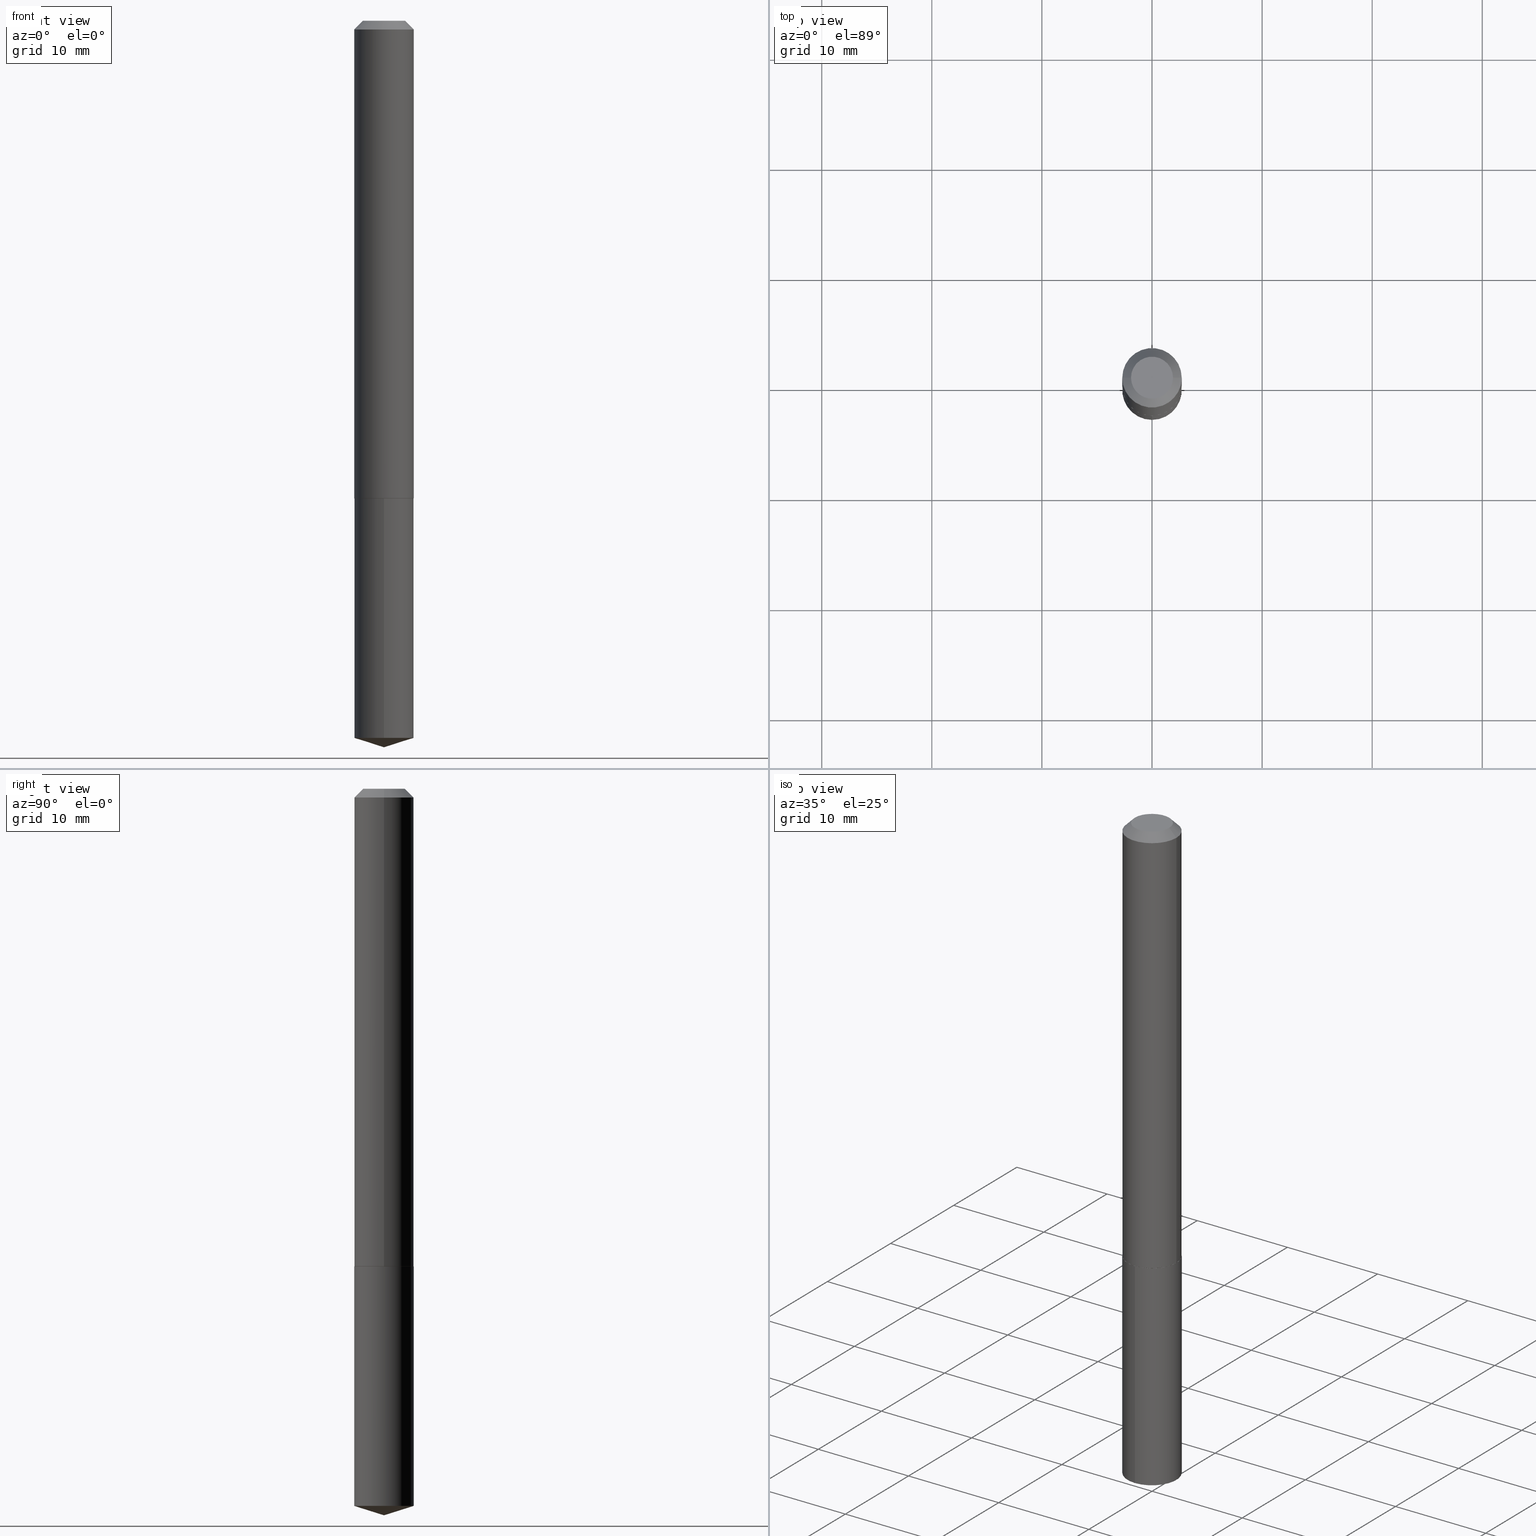
[diagram: canonical four-view strip — front | top / right | iso, engineering-drawing reading convention]
A machine part, canonical four-view strip (front | top / right | iso — engineering-drawing reading convention). The complete STEP part file that produces these views, byte-faithful:
ISO-10303-21;
HEADER;
FILE_DESCRIPTION (( 'STEP AP203' ),
    '1' );
FILE_NAME ('68702.STEP',
    '2024-04-23T13:43:14',
    ( '' ),
    ( '' ),
    'SwSTEP 2.0',
    'SolidWorks 2023',
    '' );
FILE_SCHEMA (( 'CONFIG_CONTROL_DESIGN' ));
ENDSEC;

DATA;
#1 = CARTESIAN_POINT ( 'NONE',  ( -0.1058000000000002688, -5.211141573939099053E-15, -1.708599999999999675 ) ) ;
#2 = PLANE ( 'NONE',  #193 ) ;
#3 = AXIS2_PLACEMENT_3D ( 'NONE', #270, #33, #188 ) ;
#4 = LINE ( 'NONE', #47, #42 ) ;
#5 = AXIS2_PLACEMENT_3D ( 'NONE', #387, #30, #23 ) ;
#6 = EDGE_LOOP ( 'NONE', ( #142, #95, #98, #90 ) ) ;
#7 = ORIENTED_EDGE ( 'NONE', *, *, #293, .T. ) ;
#8 = DIRECTION ( 'NONE',  ( -1.000000000000000000, 6.982962677686265922E-15, -4.876176775795935793E-29 ) ) ;
#9 = CIRCLE ( 'NONE', #3, 0.1063000000000000056 ) ;
#10 = APPROVAL_PERSON_ORGANIZATION ( #76, #220, #228 ) ;
#11 = CARTESIAN_POINT ( 'NONE',  ( -8.992007388409862087E-28, 1.283932429603322611E-13, 36.77167874015748339 ) ) ;
#12 = FACE_OUTER_BOUND ( 'NONE', #252, .T. ) ;
#13 = ORIENTED_EDGE ( 'NONE', *, *, #29, .T. ) ;
#14 =( NAMED_UNIT ( * ) SI_UNIT ( $, .STERADIAN. ) SOLID_ANGLE_UNIT ( ) );
#15 = EDGE_CURVE ( 'NONE', #200, #246, #79, .T. ) ;
#16 = FACE_OUTER_BOUND ( 'NONE', #301, .T. ) ;
#17 = CARTESIAN_POINT ( 'NONE',  ( 0.1063000000000002415, -6.706088207516028077E-15, -1.708099999999999952 ) ) ;
#18 = AXIS2_PLACEMENT_3D ( 'NONE', #386, #186, #126 ) ;
#19 = DIRECTION ( 'NONE',  ( -2.445366950737463052E-29, 3.491627201641465727E-15, 1.000000000000000000 ) ) ;
#20 = EDGE_CURVE ( 'NONE', #308, #287, #9, .T. ) ;
#21 = COORDINATED_UNIVERSAL_TIME_OFFSET ( 5, 0, .BEHIND. ) ;
#22 = EDGE_LOOP ( 'NONE', ( #333, #57, #227, #325 ) ) ;
#23 = DIRECTION ( 'NONE',  ( -6.982962677686265133E-15, -1.000000000000000000, 3.500519750498771880E-15 ) ) ;
#24 = EDGE_LOOP ( 'NONE', ( #147, #378, #297, #179 ) ) ;
#25 = AXIS2_PLACEMENT_3D ( 'NONE', #11, #143, #77 ) ;
#26 = VECTOR ( 'NONE', #375, 39.37007874015748143 ) ;
#27 = FACE_OUTER_BOUND ( 'NONE', #24, .T. ) ;
#28 = ORIENTED_EDGE ( 'NONE', *, *, #288, .T. ) ;
#29 = EDGE_CURVE ( 'NONE', #367, #287, #300, .T. ) ;
#30 = DIRECTION ( 'NONE',  ( -2.445366950737463332E-29, 3.491627201641465727E-15, 1.000000000000000000 ) ) ;
#31 = CC_DESIGN_PERSON_AND_ORGANIZATION_ASSIGNMENT ( #120, #213, ( #269 ) ) ;
#32 = DIRECTION ( 'NONE',  ( 1.000000000000000000, -6.982962677686266711E-15, 4.876176775795935793E-29 ) ) ;
#33 = DIRECTION ( 'NONE',  ( -2.445366950737463332E-29, 3.491627201641465727E-15, 1.000000000000000000 ) ) ;
#34 = AXIS2_PLACEMENT_3D ( 'NONE', #153, #302, #182 ) ;
#35 = EDGE_CURVE ( 'NONE', #212, #278, #185, .T. ) ;
#36 = CC_DESIGN_PERSON_AND_ORGANIZATION_ASSIGNMENT ( #82, #129, ( #247 ) ) ;
#37 = FACE_OUTER_BOUND ( 'NONE', #218, .T. ) ;
#38 = PLANE ( 'NONE',  #284 ) ;
#39 = FACE_OUTER_BOUND ( 'NONE', #127, .T. ) ;
#40 = DIRECTION ( 'NONE',  ( 6.982962677686265922E-15, 1.000000000000000000, -3.491627201641465727E-15 ) ) ;
#41 = DIMENSIONAL_EXPONENTS ( 1.000000000000000000, 0.000000000000000000, 0.000000000000000000, 0.000000000000000000, 0.000000000000000000, 0.000000000000000000, 0.000000000000000000 ) ;
#42 = VECTOR ( 'NONE', #177, 39.37007874015748854 ) ;
#43 =( GEOMETRIC_REPRESENTATION_CONTEXT ( 3 ) GLOBAL_UNCERTAINTY_ASSIGNED_CONTEXT ( ( #312 ) ) GLOBAL_UNIT_ASSIGNED_CONTEXT ( ( #304, #99, #14 ) ) REPRESENTATION_CONTEXT ( 'NONE', 'WORKASPACE' ) );
#44 = CARTESIAN_POINT ( 'NONE',  ( 4.177105267844832123E-29, -5.963799274877977150E-15, -1.708099999999999952 ) ) ;
#45 = CARTESIAN_POINT ( 'NONE',  ( 4.178328002247923804E-29, -5.965545015547398653E-15, -1.708599999999999897 ) ) ;
#46 = PRODUCT_DEFINITION ( 'UNKNOWN', '', #269, #376 ) ;
#47 = CARTESIAN_POINT ( 'NONE',  ( 6.354392597311181890E-29, -9.072145678390764475E-15, -2.598399999999999821 ) ) ;
#48 = DIRECTION ( 'NONE',  ( 2.445468806185136597E-29, -3.491481338843145583E-15, -1.000000000000000000 ) ) ;
#49 = DIRECTION ( 'NONE',  ( -2.445468806185136597E-29, 3.491481338843145583E-15, 1.000000000000000000 ) ) ;
#50 = AXIS2_PLACEMENT_3D ( 'NONE', #92, #194, #165 ) ;
#51 = ADVANCED_FACE ( 'NONE', ( #273 ), #2, .F. ) ;
#52 = ORGANIZATION ( 'UNSPECIFIED', 'UNSPECIFIED', '' ) ;
#53 = ORIENTED_EDGE ( 'NONE', *, *, #180, .T. ) ;
#54 = CLOSED_SHELL ( 'NONE', ( #68, #151, #203, #365, #327 ) ) ;
#55 = AXIS2_PLACEMENT_3D ( 'NONE', #154, #265, #383 ) ;
#56 = ORIENTED_EDGE ( 'NONE', *, *, #15, .F. ) ;
#57 = ORIENTED_EDGE ( 'NONE', *, *, #150, .T. ) ;
#58 = EDGE_CURVE ( 'NONE', #124, #222, #139, .T. ) ;
#59 = ORIENTED_EDGE ( 'NONE', *, *, #262, .F. ) ;
#60 = SECURITY_CLASSIFICATION_LEVEL ( 'unclassified' ) ;
#61 = AXIS2_PLACEMENT_3D ( 'NONE', #105, #71, #307 ) ;
#62 = AXIS2_PLACEMENT_3D ( 'NONE', #162, #63, #189 ) ;
#63 = DIRECTION ( 'NONE',  ( 2.445468806185136597E-29, -3.491481338843145583E-15, -1.000000000000000000 ) ) ;
#64 = CARTESIAN_POINT ( 'NONE',  ( 7.553069281130281498E-16, 0.1062999999999940520, -1.708600000000000119 ) ) ;
#65 = DIRECTION ( 'NONE',  ( 1.000000000000000000, -6.982962677686265922E-15, 4.876182450887181548E-29 ) ) ;
#66 = COORDINATED_UNIVERSAL_TIME_OFFSET ( 5, 0, .BEHIND. ) ;
#67 = ORIENTED_EDGE ( 'NONE', *, *, #86, .F. ) ;
#68 = ADVANCED_FACE ( 'NONE', ( #303 ), #229, .T. ) ;
#69 = CARTESIAN_POINT ( 'NONE',  ( 0.000000000000000000, 0.000000000000000000, 0.000000000000000000 ) ) ;
#70 = ADVANCED_FACE ( 'NONE', ( #37 ), #317, .T. ) ;
#71 = DIRECTION ( 'NONE',  ( -2.445366950737463332E-29, 3.491627201641465727E-15, 1.000000000000000000 ) ) ;
#72 = CARTESIAN_POINT ( 'NONE',  ( 4.178328002247923804E-29, -5.965545015547398653E-15, -1.708599999999999897 ) ) ;
#73 = ORIENTED_EDGE ( 'NONE', *, *, #288, .F. ) ;
#74 = CARTESIAN_POINT ( 'NONE',  ( 4.177105267844832123E-29, -5.963799274877977150E-15, -1.708099999999999952 ) ) ;
#75 = CARTESIAN_POINT ( 'NONE',  ( -7.422889326380084277E-16, -0.1063000000000059592, -1.708599999999999675 ) ) ;
#76 = PERSON_AND_ORGANIZATION ( #223, #52 ) ;
#77 = DIRECTION ( 'NONE',  ( -6.982962677686265133E-15, -1.000000000000000000, 3.500519750498771880E-15 ) ) ;
#78 = CYLINDRICAL_SURFACE ( 'NONE', #131, 0.1063000000000000056 ) ;
#79 = CIRCLE ( 'NONE', #50, 0.1058000000000002688 ) ;
#80 = CIRCLE ( 'NONE', #178, 0.1063000000000002415 ) ;
#81 = ORIENTED_EDGE ( 'NONE', *, *, #381, .T. ) ;
#82 = PERSON_AND_ORGANIZATION ( #223, #52 ) ;
#83 = EDGE_LOOP ( 'NONE', ( #242, #81, #204 ) ) ;
#84 = CC_DESIGN_APPROVAL ( #220, ( #46 ) ) ;
#85 = APPROVAL_STATUS ( 'not_yet_approved' ) ;
#86 = EDGE_CURVE ( 'NONE', #200, #280, #113, .T. ) ;
#87 = LOCAL_TIME ( 9, 43, 14.00000000000000000, #173 ) ;
#88 = APPROVAL_STATUS ( 'not_yet_approved' ) ;
#89 = CARTESIAN_POINT ( 'NONE',  ( 6.354041484796224725E-29, -9.072644120745184724E-15, -2.598399999999999821 ) ) ;
#90 = ORIENTED_EDGE ( 'NONE', *, *, #230, .F. ) ;
#91 = CALENDAR_DATE ( 2024, 23, 4 ) ;
#92 = CARTESIAN_POINT ( 'NONE',  ( 4.178328002247923243E-29, -5.965545015547397076E-15, -1.708599999999999675 ) ) ;
#93 = PERSON_AND_ORGANIZATION ( #223, #52 ) ;
#94 = CYLINDRICAL_SURFACE ( 'NONE', #324, 0.1063000000000001166 ) ;
#95 = ORIENTED_EDGE ( 'NONE', *, *, #170, .T. ) ;
#96 = AXIS2_PLACEMENT_3D ( 'NONE', #44, #138, #289 ) ;
#97 = ORIENTED_EDGE ( 'NONE', *, *, #230, .T. ) ;
#98 = ORIENTED_EDGE ( 'NONE', *, *, #332, .T. ) ;
#99 =( NAMED_UNIT ( * ) PLANE_ANGLE_UNIT ( ) SI_UNIT ( $, .RADIAN. ) );
#100 = AXIS2_PLACEMENT_3D ( 'NONE', #190, #275, #130 ) ;
#101 = CC_DESIGN_APPROVAL ( #363, ( #269 ) ) ;
#102 = ORIENTED_EDGE ( 'NONE', *, *, #20, .T. ) ;
#103 = DIRECTION ( 'NONE',  ( -2.445468806185136597E-29, 3.491481338843145583E-15, 1.000000000000000000 ) ) ;
#104 = CARTESIAN_POINT ( 'NONE',  ( 7.553069281130496462E-16, 0.1062999999999910683, -2.564883738742163910 ) ) ;
#105 = CARTESIAN_POINT ( 'NONE',  ( 4.178328002247923804E-29, -5.965545015547398653E-15, -1.708599999999999897 ) ) ;
#106 = DATE_AND_TIME ( #233, #87 ) ;
#107 = CC_DESIGN_PERSON_AND_ORGANIZATION_ASSIGNMENT ( #335, #328, ( #46 ) ) ;
#108 = ORIENTED_EDGE ( 'NONE', *, *, #374, .T. ) ;
#109 = CARTESIAN_POINT ( 'NONE',  ( 6.354041484796224725E-29, -9.072644120745184724E-15, -2.598399999999999821 ) ) ;
#110 = CARTESIAN_POINT ( 'NONE',  ( 7.642090019328599159E-31, -1.091087918388489774E-16, -0.03125000000000019429 ) ) ;
#111 = CIRCLE ( 'NONE', #379, 0.1063000000000000056 ) ;
#112 = VECTOR ( 'NONE', #271, 39.37007874015748143 ) ;
#113 = LINE ( 'NONE', #171, #319 ) ;
#114 = CARTESIAN_POINT ( 'NONE',  ( 7.642090019328599159E-31, -1.091087918388489774E-16, -0.03125000000000019429 ) ) ;
#115 = LINE ( 'NONE', #234, #207 ) ;
#116 = CC_DESIGN_DATE_AND_TIME_ASSIGNMENT ( #384, #184, ( #46 ) ) ;
#117 = CONICAL_SURFACE ( 'NONE', #5, 124.8659371009126602, 1.265363707695886131 ) ;
#118 = ORIENTED_EDGE ( 'NONE', *, *, #58, .F. ) ;
#119 = CC_DESIGN_PERSON_AND_ORGANIZATION_ASSIGNMENT ( #235, #368, ( #382 ) ) ;
#120 = PERSON_AND_ORGANIZATION ( #223, #52 ) ;
#121 = CLOSED_SHELL ( 'NONE', ( #318, #272, #70, #51, #305, #192, #259, #348 ) ) ;
#122 = AXIS2_PLACEMENT_3D ( 'NONE', #299, #241, #156 ) ;
#123 = CARTESIAN_POINT ( 'NONE',  ( -7.422889326379876215E-16, -0.1063000000000090123, -2.564883738742163022 ) ) ;
#124 = VERTEX_POINT ( 'NONE', #198 ) ;
#125 = APPROVAL ( #85, 'UNSPECIFIED' ) ;
#126 = DIRECTION ( 'NONE',  ( -6.982962677686265922E-15, -1.000000000000000000, 2.569941668545873170E-15 ) ) ;
#127 = EDGE_LOOP ( 'NONE', ( #108, #353, #315, #196 ) ) ;
#128 = DIRECTION ( 'NONE',  ( -0.7071067811865453523, 2.468850131082234184E-15, -0.7071067811865496822 ) ) ;
#129 = PERSON_AND_ORGANIZATION_ROLE ( 'classification_officer' ) ;
#130 = DIRECTION ( 'NONE',  ( 1.000000000000000000, -6.982962677686267499E-15, 0.000000000000000000 ) ) ;
#131 = AXIS2_PLACEMENT_3D ( 'NONE', #45, #255, #372 ) ;
#132 = CARTESIAN_POINT ( 'NONE',  ( -0.1063000000000000056, -2.281147105245424221E-15, -0.03125000000000019429 ) ) ;
#133 = APPROVAL_STATUS ( 'not_yet_approved' ) ;
#134 = ORIENTED_EDGE ( 'NONE', *, *, #20, .F. ) ;
#135 = APPROVAL_DATE_TIME ( #106, #125 ) ;
#136 = ORIENTED_EDGE ( 'NONE', *, *, #346, .F. ) ;
#137 = FACE_OUTER_BOUND ( 'NONE', #183, .T. ) ;
#138 = DIRECTION ( 'NONE',  ( -2.445468806185136597E-29, 3.491481338843145583E-15, 1.000000000000000000 ) ) ;
#139 = CIRCLE ( 'NONE', #268, 0.07505000000000000560 ) ;
#140 = VECTOR ( 'NONE', #211, 39.37007874015748854 ) ;
#141 = MANIFOLD_SOLID_BREP ( 'Body-Move/Copy2[1]', #54 ) ;
#142 = ORIENTED_EDGE ( 'NONE', *, *, #29, .F. ) ;
#143 = DIRECTION ( 'NONE',  ( -2.445366950737463332E-29, 3.491627201641465727E-15, 1.000000000000000000 ) ) ;
#144 = CARTESIAN_POINT ( 'NONE',  ( 6.272255957421923181E-29, -8.955368610062791421E-15, -2.564883738742163466 ) ) ;
#145 = DIRECTION ( 'NONE',  ( 1.000000000000000000, -6.982962677686262766E-15, 0.000000000000000000 ) ) ;
#146 = FACE_OUTER_BOUND ( 'NONE', #373, .T. ) ;
#147 = ORIENTED_EDGE ( 'NONE', *, *, #311, .F. ) ;
#148 = CARTESIAN_POINT ( 'NONE',  ( -7.422889326380084277E-16, -0.1063000000000059592, -1.708599999999999675 ) ) ;
#149 = APPLICATION_PROTOCOL_DEFINITION ( 'international standard', 'config_control_design', 1994, #219 ) ;
#150 = EDGE_CURVE ( 'NONE', #316, #280, #290, .T. ) ;
#151 = ADVANCED_FACE ( 'NONE', ( #137 ), #174, .T. ) ;
#152 = LOCAL_TIME ( 9, 43, 14.00000000000000000, #66 ) ;
#153 = CARTESIAN_POINT ( 'NONE',  ( 4.178328002247923243E-29, -5.965545015547397076E-15, -1.708599999999999675 ) ) ;
#154 = CARTESIAN_POINT ( 'NONE',  ( 0.000000000000000000, 0.000000000000000000, 0.000000000000000000 ) ) ;
#155 = VERTEX_POINT ( 'NONE', #109 ) ;
#156 = DIRECTION ( 'NONE',  ( 1.000000000000000000, -6.982962677686266711E-15, 4.876176775795935793E-29 ) ) ;
#157 = AXIS2_PLACEMENT_3D ( 'NONE', #74, #339, #285 ) ;
#158 = CARTESIAN_POINT ( 'NONE',  ( -0.07505000000000001947, 5.786257448797778683E-16, 2.388061258298797245E-19 ) ) ;
#159 = ORIENTED_EDGE ( 'NONE', *, *, #346, .T. ) ;
#160 = DIRECTION ( 'NONE',  ( -2.445468806185136597E-29, 3.491481338843145583E-15, 1.000000000000000000 ) ) ;
#161 = PRODUCT_DEFINITION_SHAPE ( 'NONE', 'NONE',  #46 ) ;
#162 = CARTESIAN_POINT ( 'NONE',  ( 7.642090019328599159E-31, -1.091087918388489774E-16, -0.03125000000000019429 ) ) ;
#163 = DIRECTION ( 'NONE',  ( -2.445366950737463052E-29, 3.491627201641465727E-15, 1.000000000000000000 ) ) ;
#164 = LINE ( 'NONE', #274, #310 ) ;
#165 = DIRECTION ( 'NONE',  ( 1.000000000000000000, -6.982962677686265922E-15, 0.000000000000000000 ) ) ;
#166 = CARTESIAN_POINT ( 'NONE',  ( 0.1063000000000000056, -8.513977244768991407E-16, -0.03125000000000019429 ) ) ;
#167 = DATE_AND_TIME ( #361, #320 ) ;
#168 = APPROVAL_PERSON_ORGANIZATION ( #295, #125, #209 ) ;
#169 = CARTESIAN_POINT ( 'NONE',  ( 6.272255957421923181E-29, -8.955368610062791421E-15, -2.564883738742163466 ) ) ;
#170 = EDGE_CURVE ( 'NONE', #367, #245, #111, .T. ) ;
#171 = CARTESIAN_POINT ( 'NONE',  ( 0.1063000000000002415, -6.706088207516028077E-15, -1.708099999999999952 ) ) ;
#172 = DIRECTION ( 'NONE',  ( 2.445366950737463052E-29, -3.491627201641465727E-15, -1.000000000000000000 ) ) ;
#173 = COORDINATED_UNIVERSAL_TIME_OFFSET ( 5, 0, .BEHIND. ) ;
#174 = CONICAL_SURFACE ( 'NONE', #25, 124.8659371009126602, 1.265363707695886131 ) ;
#175 = AXIS2_PLACEMENT_3D ( 'NONE', #144, #336, #195 ) ;
#176 = DIRECTION ( 'NONE',  ( 1.000000000000000000, -6.982962677686267499E-15, 0.000000000000000000 ) ) ;
#177 = DIRECTION ( 'NONE',  ( 6.776566513254244727E-15, 0.9537169507482271547, 0.3007057995042724530 ) ) ;
#178 = AXIS2_PLACEMENT_3D ( 'NONE', #355, #160, #294 ) ;
#179 = ORIENTED_EDGE ( 'NONE', *, *, #35, .T. ) ;
#180 = EDGE_CURVE ( 'NONE', #246, #200, #254, .T. ) ;
#181 =( LENGTH_UNIT ( ) NAMED_UNIT ( * ) SI_UNIT ( $, .METRE. ) );
#182 = DIRECTION ( 'NONE',  ( 1.000000000000000000, -6.982962677686265922E-15, 0.000000000000000000 ) ) ;
#183 = EDGE_LOOP ( 'NONE', ( #313, #362, #136 ) ) ;
#184 = DATE_TIME_ROLE ( 'creation_date' ) ;
#185 = CIRCLE ( 'NONE', #100, 0.1063000000000000056 ) ;
#186 = DIRECTION ( 'NONE',  ( -2.445366950737463332E-29, 3.491627201641465727E-15, 1.000000000000000000 ) ) ;
#187 = CIRCLE ( 'NONE', #175, 0.1063000000000000056 ) ;
#188 = DIRECTION ( 'NONE',  ( -6.982962677686265922E-15, -1.000000000000000000, 2.569941668545873170E-15 ) ) ;
#189 = DIRECTION ( 'NONE',  ( -1.000000000000000000, 6.982962677686267499E-15, 0.000000000000000000 ) ) ;
#190 = CARTESIAN_POINT ( 'NONE',  ( 7.642090019328599159E-31, -1.091087918388489774E-16, -0.03125000000000019429 ) ) ;
#191 = CARTESIAN_POINT ( 'NONE',  ( -5.839929314523221596E-48, 8.337871319499147471E-34, 2.388061258337352918E-19 ) ) ;
#192 = ADVANCED_FACE ( 'NONE', ( #296 ), #248, .T. ) ;
#193 = AXIS2_PLACEMENT_3D ( 'NONE', #389, #250, #221 ) ;
#194 = DIRECTION ( 'NONE',  ( -2.445468806185136597E-29, 3.491481338843145583E-15, 1.000000000000000000 ) ) ;
#195 = DIRECTION ( 'NONE',  ( -6.982962677686265922E-15, -1.000000000000000000, 5.139883337091746339E-15 ) ) ;
#196 = ORIENTED_EDGE ( 'NONE', *, *, #390, .F. ) ;
#197 = APPLICATION_PROTOCOL_DEFINITION ( 'international standard', 'config_control_design', 1994, #208 ) ;
#198 = CARTESIAN_POINT ( 'NONE',  ( 0.07505000000000001947, -6.766300518673582083E-16, 2.388061258379330487E-19 ) ) ;
#199 = APPROVAL_PERSON_ORGANIZATION ( #243, #363, #210 ) ;
#200 = VERTEX_POINT ( 'NONE', #277 ) ;
#201 = COORDINATED_UNIVERSAL_TIME_OFFSET ( 5, 0, .BEHIND. ) ;
#202 = DIRECTION ( 'NONE',  ( -2.445468806185136597E-29, 3.491481338843145583E-15, 1.000000000000000000 ) ) ;
#203 = ADVANCED_FACE ( 'NONE', ( #360 ), #117, .T. ) ;
#204 = ORIENTED_EDGE ( 'NONE', *, *, #170, .F. ) ;
#205 = CARTESIAN_POINT ( 'NONE',  ( -5.839929314523221596E-48, 8.337871319499147471E-34, 2.388061258337352918E-19 ) ) ;
#206 = AXIS2_PLACEMENT_3D ( 'NONE', #334, #103, #145 ) ;
#207 = VECTOR ( 'NONE', #342, 39.37007874015748143 ) ;
#208 = APPLICATION_CONTEXT ( 'configuration controlled 3d designs of mechanical parts and assemblies' ) ;
#209 = APPROVAL_ROLE ( '' ) ;
#210 = APPROVAL_ROLE ( '' ) ;
#211 = DIRECTION ( 'NONE',  ( -6.659769872151619467E-15, -0.9537169507482249342, 0.3007057995042790588 ) ) ;
#212 = VERTEX_POINT ( 'NONE', #132 ) ;
#213 = PERSON_AND_ORGANIZATION_ROLE ( 'creator' ) ;
#214 = ORIENTED_EDGE ( 'NONE', *, *, #374, .F. ) ;
#215 = PERSON_AND_ORGANIZATION_ROLE ( 'design_supplier' ) ;
#216 = CIRCLE ( 'NONE', #18, 0.1063000000000000056 ) ;
#217 = CONICAL_SURFACE ( 'NONE', #62, 0.1063000000000000056, 0.7853981633974452814 ) ;
#218 = EDGE_LOOP ( 'NONE', ( #344, #28, #214, #67 ) ) ;
#219 = APPLICATION_CONTEXT ( 'configuration controlled 3d designs of mechanical parts and assemblies' ) ;
#220 = APPROVAL ( #133, 'UNSPECIFIED' ) ;
#221 = DIRECTION ( 'NONE',  ( 1.000000000000000000, -6.982962677686265922E-15, 4.876176775795935793E-29 ) ) ;
#222 = VERTEX_POINT ( 'NONE', #158 ) ;
#223 = PERSON ( 'UNSPECIFIED', 'UNSPECIFIED', 'UNSPECIFIED', ('UNSPECIFIED'), ('UNSPECIFIED'), ('UNSPECIFIED') ) ;
#224 = DIRECTION ( 'NONE',  ( -2.445366950737463332E-29, 3.491627201641465727E-15, 1.000000000000000000 ) ) ;
#225 = DIRECTION ( 'NONE',  ( -6.982962677686265922E-15, -1.000000000000000000, 5.139883337091746339E-15 ) ) ;
#226 = PRODUCT_RELATED_PRODUCT_CATEGORY ( 'detail', '', ( #382 ) ) ;
#227 = ORIENTED_EDGE ( 'NONE', *, *, #390, .T. ) ;
#228 = APPROVAL_ROLE ( '' ) ;
#229 = CYLINDRICAL_SURFACE ( 'NONE', #61, 0.1063000000000000056 ) ;
#230 = EDGE_CURVE ( 'NONE', #287, #308, #216, .T. ) ;
#231 = FACE_OUTER_BOUND ( 'NONE', #6, .T. ) ;
#232 = CONICAL_SURFACE ( 'NONE', #96, 0.1063000000000002415, 0.7853981633977896726 ) ;
#233 = CALENDAR_DATE ( 2024, 23, 4 ) ;
#234 = CARTESIAN_POINT ( 'NONE',  ( -0.1063000000000002415, -5.208492346764989429E-15, -1.708099999999999952 ) ) ;
#235 = PERSON_AND_ORGANIZATION ( #223, #52 ) ;
#236 = CARTESIAN_POINT ( 'NONE',  ( 7.553069281130493504E-16, 0.1062999999999940520, -1.708600000000000119 ) ) ;
#237 = ADVANCED_BREP_SHAPE_REPRESENTATION ( '68702', ( #141, #388, #55 ), #43 ) ;
#238 = AXIS2_PLACEMENT_3D ( 'NONE', #114, #48, #340 ) ;
#239 = VECTOR ( 'NONE', #163, 39.37007874015748143 ) ;
#240 = CC_DESIGN_SECURITY_CLASSIFICATION ( #247, ( #269 ) ) ;
#241 = DIRECTION ( 'NONE',  ( -2.445468806185136597E-29, 3.491481338843145583E-15, 1.000000000000000000 ) ) ;
#242 = ORIENTED_EDGE ( 'NONE', *, *, #279, .F. ) ;
#243 = PERSON_AND_ORGANIZATION ( #223, #52 ) ;
#244 = CARTESIAN_POINT ( 'NONE',  ( -0.1063000000000001166, 7.553069281129873262E-16, -5.228828000940970663E-30 ) ) ;
#245 = VERTEX_POINT ( 'NONE', #123 ) ;
#246 = VERTEX_POINT ( 'NONE', #1 ) ;
#247 = SECURITY_CLASSIFICATION ( '', '', #60 ) ;
#248 = CYLINDRICAL_SURFACE ( 'NONE', #122, 0.1063000000000001166 ) ;
#249 = COORDINATED_UNIVERSAL_TIME_OFFSET ( 5, 0, .BEHIND. ) ;
#250 = DIRECTION ( 'NONE',  ( -2.438088387897960049E-29, 3.491481338843145188E-15, 1.000000000000000000 ) ) ;
#251 = DATE_AND_TIME ( #309, #337 ) ;
#252 = EDGE_LOOP ( 'NONE', ( #118, #323, #253, #59 ) ) ;
#253 = ORIENTED_EDGE ( 'NONE', *, *, #371, .T. ) ;
#254 = CIRCLE ( 'NONE', #34, 0.1058000000000002688 ) ;
#255 = DIRECTION ( 'NONE',  ( -2.445366950737463332E-29, 3.491627201641465727E-15, 1.000000000000000000 ) ) ;
#256 = EDGE_CURVE ( 'NONE', #316, #212, #356, .T. ) ;
#257 = LINE ( 'NONE', #75, #260 ) ;
#258 = SHAPE_DEFINITION_REPRESENTATION ( #161, #237 ) ;
#259 = ADVANCED_FACE ( 'NONE', ( #27 ), #217, .T. ) ;
#260 = VECTOR ( 'NONE', #19, 39.37007874015748143 ) ;
#261 = FACE_OUTER_BOUND ( 'NONE', #329, .T. ) ;
#262 = EDGE_CURVE ( 'NONE', #222, #212, #164, .T. ) ;
#263 = EDGE_LOOP ( 'NONE', ( #159, #13, #134, #357 ) ) ;
#264 = VECTOR ( 'NONE', #352, 39.37007874015748143 ) ;
#265 = DIRECTION ( 'NONE',  ( 0.000000000000000000, 0.000000000000000000, 1.000000000000000000 ) ) ;
#266 = DATE_AND_TIME ( #91, #276 ) ;
#267 = ORIENTED_EDGE ( 'NONE', *, *, #180, .F. ) ;
#268 = AXIS2_PLACEMENT_3D ( 'NONE', #191, #326, #65 ) ;
#269 = PRODUCT_DEFINITION_FORMATION_WITH_SPECIFIED_SOURCE ( 'ANY', '', #382, .NOT_KNOWN. ) ;
#270 = CARTESIAN_POINT ( 'NONE',  ( 4.178328002247923804E-29, -5.965545015547398653E-15, -1.708599999999999897 ) ) ;
#271 = DIRECTION ( 'NONE',  ( -2.445468806185136877E-29, 3.491481338843145188E-15, 1.000000000000000000 ) ) ;
#272 = ADVANCED_FACE ( 'NONE', ( #39 ), #94, .T. ) ;
#273 = FACE_OUTER_BOUND ( 'NONE', #322, .T. ) ;
#274 = CARTESIAN_POINT ( 'NONE',  ( -0.1063000000000000056, 6.331801407992013339E-16, -0.03125000000000019429 ) ) ;
#275 = DIRECTION ( 'NONE',  ( -2.445468806185136597E-29, 3.491481338843145583E-15, 1.000000000000000000 ) ) ;
#276 = LOCAL_TIME ( 9, 43, 14.00000000000000000, #21 ) ;
#277 = CARTESIAN_POINT ( 'NONE',  ( 0.1058000000000002688, -6.704342466846605785E-15, -1.708599999999999675 ) ) ;
#278 = VERTEX_POINT ( 'NONE', #166 ) ;
#279 = EDGE_CURVE ( 'NONE', #155, #367, #4, .T. ) ;
#280 = VERTEX_POINT ( 'NONE', #17 ) ;
#281 = DIRECTION ( 'NONE',  ( 0.7071067811867889352, -2.468850131084785360E-15, 0.7071067811863060992 ) ) ;
#282 = CARTESIAN_POINT ( 'NONE',  ( -2.919964657261610798E-48, 4.168935659749573735E-34, 1.194030629168676459E-19 ) ) ;
#283 = APPROVAL_DATE_TIME ( #251, #220 ) ;
#284 = AXIS2_PLACEMENT_3D ( 'NONE', #282, #369, #8 ) ;
#285 = DIRECTION ( 'NONE',  ( 1.000000000000000000, -6.982962677686262766E-15, 0.000000000000000000 ) ) ;
#286 = CARTESIAN_POINT ( 'NONE',  ( -0.1063000000000002415, -5.208492346764989429E-15, -1.708099999999999952 ) ) ;
#287 = VERTEX_POINT ( 'NONE', #236 ) ;
#288 = EDGE_CURVE ( 'NONE', #246, #316, #115, .T. ) ;
#289 = DIRECTION ( 'NONE',  ( 1.000000000000000000, -6.982962677686262766E-15, 0.000000000000000000 ) ) ;
#290 = CIRCLE ( 'NONE', #157, 0.1063000000000002415 ) ;
#291 = CC_DESIGN_DATE_AND_TIME_ASSIGNMENT ( #167, #377, ( #247 ) ) ;
#292 = MECHANICAL_CONTEXT ( 'NONE', #219, 'mechanical' ) ;
#293 = EDGE_CURVE ( 'NONE', #222, #124, #330, .T. ) ;
#294 = DIRECTION ( 'NONE',  ( 1.000000000000000000, -6.982962677686262766E-15, 0.000000000000000000 ) ) ;
#295 = PERSON_AND_ORGANIZATION ( #223, #52 ) ;
#296 = FACE_OUTER_BOUND ( 'NONE', #22, .T. ) ;
#297 = ORIENTED_EDGE ( 'NONE', *, *, #262, .T. ) ;
#298 = APPROVAL_DATE_TIME ( #266, #363 ) ;
#299 = CARTESIAN_POINT ( 'NONE',  ( 0.000000000000000000, 0.000000000000000000, 0.000000000000000000 ) ) ;
#300 = LINE ( 'NONE', #64, #239 ) ;
#301 = EDGE_LOOP ( 'NONE', ( #73, #53, #364, #338 ) ) ;
#302 = DIRECTION ( 'NONE',  ( -2.445468806185136597E-29, 3.491481338843145583E-15, 1.000000000000000000 ) ) ;
#303 = FACE_OUTER_BOUND ( 'NONE', #263, .T. ) ;
#304 =( CONVERSION_BASED_UNIT ( 'INCH', #351 ) LENGTH_UNIT ( ) NAMED_UNIT ( #41 ) );
#305 = ADVANCED_FACE ( 'NONE', ( #16 ), #232, .T. ) ;
#306 = AXIS2_PLACEMENT_3D ( 'NONE', #110, #202, #176 ) ;
#307 = DIRECTION ( 'NONE',  ( -6.982962677686265922E-15, -1.000000000000000000, 2.569941668545873170E-15 ) ) ;
#308 = VERTEX_POINT ( 'NONE', #148 ) ;
#309 = CALENDAR_DATE ( 2024, 23, 4 ) ;
#310 = VECTOR ( 'NONE', #128, 39.37007874015748143 ) ;
#311 = EDGE_CURVE ( 'NONE', #124, #278, #370, .T. ) ;
#312 = UNCERTAINTY_MEASURE_WITH_UNIT (LENGTH_MEASURE( 1.000000000000000082E-05 ), #304, 'distance_accuracy_value', 'NONE');
#313 = ORIENTED_EDGE ( 'NONE', *, *, #381, .F. ) ;
#314 = PLANE ( 'NONE',  #366 ) ;
#315 = ORIENTED_EDGE ( 'NONE', *, *, #371, .F. ) ;
#316 = VERTEX_POINT ( 'NONE', #286 ) ;
#317 = CONICAL_SURFACE ( 'NONE', #206, 0.1063000000000002415, 0.7853981633977896726 ) ;
#318 = ADVANCED_FACE ( 'NONE', ( #12 ), #359, .T. ) ;
#319 = VECTOR ( 'NONE', #281, 39.37007874015748143 ) ;
#320 = LOCAL_TIME ( 9, 43, 14.00000000000000000, #249 ) ;
#321 = LINE ( 'NONE', #385, #112 ) ;
#322 = EDGE_LOOP ( 'NONE', ( #56, #267 ) ) ;
#323 = ORIENTED_EDGE ( 'NONE', *, *, #311, .T. ) ;
#324 = AXIS2_PLACEMENT_3D ( 'NONE', #69, #358, #32 ) ;
#325 = ORIENTED_EDGE ( 'NONE', *, *, #35, .F. ) ;
#326 = DIRECTION ( 'NONE',  ( -2.445468806185136597E-29, 3.491481338843145583E-15, 1.000000000000000000 ) ) ;
#327 = ADVANCED_FACE ( 'NONE', ( #146 ), #314, .F. ) ;
#328 = PERSON_AND_ORGANIZATION_ROLE ( 'creator' ) ;
#329 = EDGE_LOOP ( 'NONE', ( #7, #350 ) ) ;
#330 = CIRCLE ( 'NONE', #345, 0.07505000000000000560 ) ;
#331 = CARTESIAN_POINT ( 'NONE',  ( 0.1063000000000000056, -8.383797290019627421E-16, -0.03125000000000019429 ) ) ;
#332 = EDGE_CURVE ( 'NONE', #245, #308, #257, .T. ) ;
#333 = ORIENTED_EDGE ( 'NONE', *, *, #256, .F. ) ;
#334 = CARTESIAN_POINT ( 'NONE',  ( 4.177105267844832123E-29, -5.963799274877977150E-15, -1.708099999999999952 ) ) ;
#335 = PERSON_AND_ORGANIZATION ( #223, #52 ) ;
#336 = DIRECTION ( 'NONE',  ( -2.445366950737463332E-29, 3.491627201641465727E-15, 1.000000000000000000 ) ) ;
#337 = LOCAL_TIME ( 9, 43, 14.00000000000000000, #201 ) ;
#338 = ORIENTED_EDGE ( 'NONE', *, *, #150, .F. ) ;
#339 = DIRECTION ( 'NONE',  ( -2.445468806185136597E-29, 3.491481338843145583E-15, 1.000000000000000000 ) ) ;
#340 = DIRECTION ( 'NONE',  ( -1.000000000000000000, 6.982962677686267499E-15, 0.000000000000000000 ) ) ;
#341 = CC_DESIGN_PERSON_AND_ORGANIZATION_ASSIGNMENT ( #93, #215, ( #269 ) ) ;
#342 = DIRECTION ( 'NONE',  ( -0.7071067811867889352, 7.493145998871226640E-15, 0.7071067811863060992 ) ) ;
#343 = DIRECTION ( 'NONE',  ( 1.000000000000000000, -6.982962677686265922E-15, 4.876182450887181548E-29 ) ) ;
#344 = ORIENTED_EDGE ( 'NONE', *, *, #15, .T. ) ;
#345 = AXIS2_PLACEMENT_3D ( 'NONE', #205, #49, #343 ) ;
#346 = EDGE_CURVE ( 'NONE', #245, #367, #187, .T. ) ;
#347 = LINE ( 'NONE', #89, #140 ) ;
#348 = ADVANCED_FACE ( 'NONE', ( #261 ), #38, .F. ) ;
#349 = CC_DESIGN_APPROVAL ( #125, ( #247 ) ) ;
#350 = ORIENTED_EDGE ( 'NONE', *, *, #58, .T. ) ;
#351 = LENGTH_MEASURE_WITH_UNIT ( LENGTH_MEASURE( 0.02539999999999999897 ), #181 );
#352 = DIRECTION ( 'NONE',  ( -2.445468806185136877E-29, 3.491481338843145188E-15, 1.000000000000000000 ) ) ;
#353 = ORIENTED_EDGE ( 'NONE', *, *, #256, .T. ) ;
#354 = CALENDAR_DATE ( 2024, 23, 4 ) ;
#355 = CARTESIAN_POINT ( 'NONE',  ( 4.177105267844832123E-29, -5.963799274877977150E-15, -1.708099999999999952 ) ) ;
#356 = LINE ( 'NONE', #244, #264 ) ;
#357 = ORIENTED_EDGE ( 'NONE', *, *, #332, .F. ) ;
#358 = DIRECTION ( 'NONE',  ( -2.445468806185136597E-29, 3.491481338843145583E-15, 1.000000000000000000 ) ) ;
#359 = CONICAL_SURFACE ( 'NONE', #238, 0.1063000000000000056, 0.7853981633974452814 ) ;
#360 = FACE_OUTER_BOUND ( 'NONE', #83, .T. ) ;
#361 = CALENDAR_DATE ( 2024, 23, 4 ) ;
#362 = ORIENTED_EDGE ( 'NONE', *, *, #279, .T. ) ;
#363 = APPROVAL ( #88, 'UNSPECIFIED' ) ;
#364 = ORIENTED_EDGE ( 'NONE', *, *, #86, .T. ) ;
#365 = ADVANCED_FACE ( 'NONE', ( #231 ), #78, .T. ) ;
#366 = AXIS2_PLACEMENT_3D ( 'NONE', #72, #172, #40 ) ;
#367 = VERTEX_POINT ( 'NONE', #104 ) ;
#368 = PERSON_AND_ORGANIZATION_ROLE ( 'design_owner' ) ;
#369 = DIRECTION ( 'NONE',  ( 2.438088387897960049E-29, -3.491481338843145188E-15, -1.000000000000000000 ) ) ;
#370 = LINE ( 'NONE', #331, #26 ) ;
#371 = EDGE_CURVE ( 'NONE', #278, #212, #380, .T. ) ;
#372 = DIRECTION ( 'NONE',  ( -6.982962677686265922E-15, -1.000000000000000000, 2.569941668545873170E-15 ) ) ;
#373 = EDGE_LOOP ( 'NONE', ( #102, #97 ) ) ;
#374 = EDGE_CURVE ( 'NONE', #280, #316, #80, .T. ) ;
#375 = DIRECTION ( 'NONE',  ( 0.7071067811865453523, -7.319954787623248157E-15, -0.7071067811865496822 ) ) ;
#376 = DESIGN_CONTEXT ( 'detailed design', #208, 'design' ) ;
#377 = DATE_TIME_ROLE ( 'classification_date' ) ;
#378 = ORIENTED_EDGE ( 'NONE', *, *, #293, .F. ) ;
#379 = AXIS2_PLACEMENT_3D ( 'NONE', #169, #224, #225 ) ;
#380 = CIRCLE ( 'NONE', #306, 0.1063000000000000056 ) ;
#381 = EDGE_CURVE ( 'NONE', #155, #245, #347, .T. ) ;
#382 = PRODUCT ( '68702', '68702', '', ( #292 ) ) ;
#383 = DIRECTION ( 'NONE',  ( 1.000000000000000000, 0.000000000000000000, 0.000000000000000000 ) ) ;
#384 = DATE_AND_TIME ( #354, #152 ) ;
#385 = CARTESIAN_POINT ( 'NONE',  ( 0.1063000000000001166, -7.422889326380509276E-16, 5.183375912671085656E-30 ) ) ;
#386 = CARTESIAN_POINT ( 'NONE',  ( 4.178328002247923804E-29, -5.965545015547398653E-15, -1.708599999999999897 ) ) ;
#387 = CARTESIAN_POINT ( 'NONE',  ( -8.992007388409862087E-28, 1.283932429603322611E-13, 36.77167874015748339 ) ) ;
#388 = MANIFOLD_SOLID_BREP ( 'Body-Move/Copy2[2]', #121 ) ;
#389 = CARTESIAN_POINT ( 'NONE',  ( 7.259039189740722844E-29, -1.553791251866161230E-15, -1.708599999999999897 ) ) ;
#390 = EDGE_CURVE ( 'NONE', #280, #278, #321, .T. ) ;
ENDSEC;
END-ISO-10303-21;
